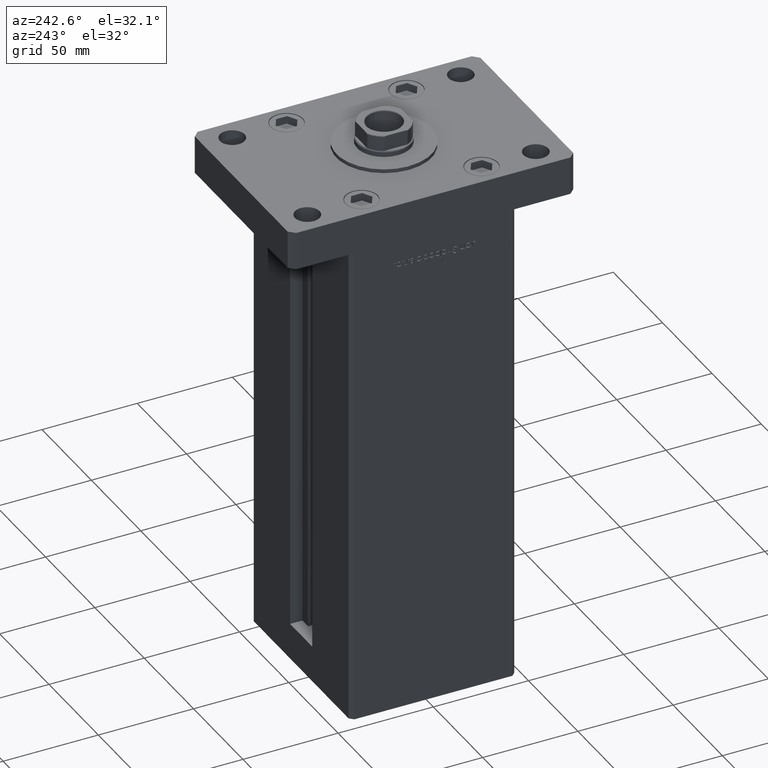
[diagram: clean part render]
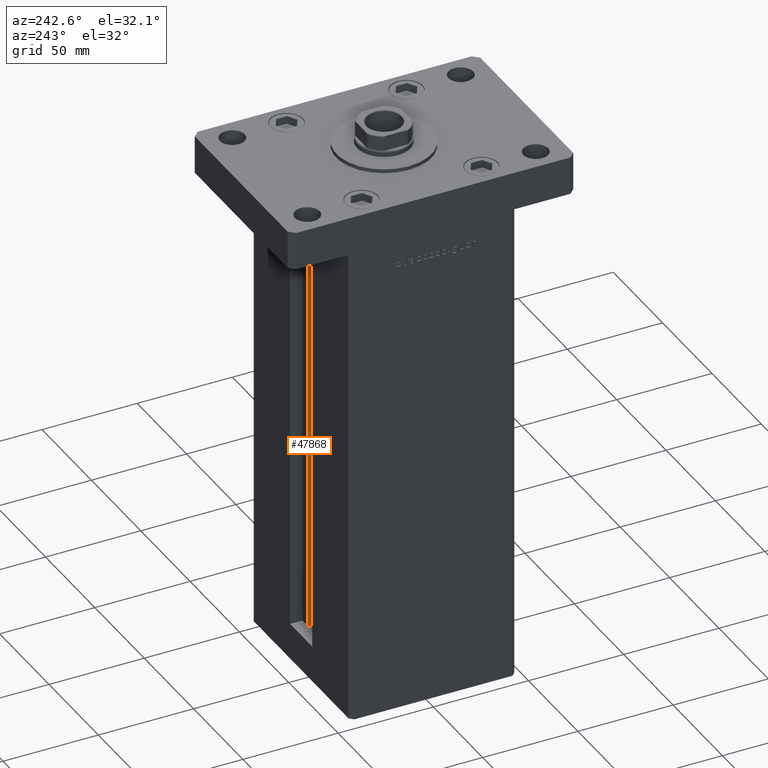
[diagram: same view with one face highlighted and labeled with its STEP entity id]
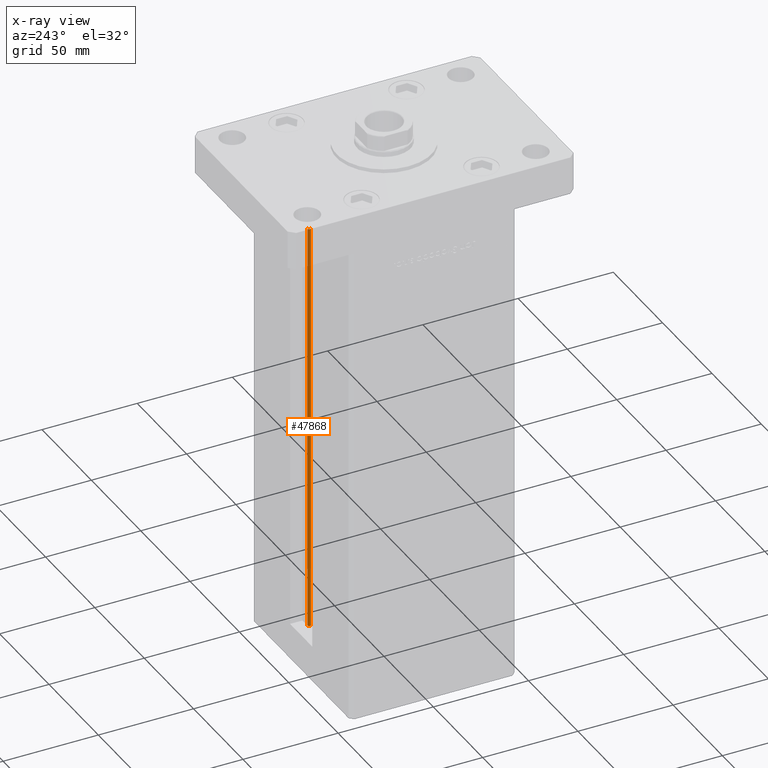
[diagram: x-ray of the same camera — body ghosted, the highlighted face saturated]
A machine part, auxiliary view. The second image highlights one B-rep face of the part: STEP entity #47868.
The next image is the same camera in x-ray: the body ghosted, the highlighted face saturated — about 9% of this face is hidden behind the body in this view.
In plain terms, the highlighted cylindrical surface (edge-blend (fillet) strip) has radius 0.9333 mm, axis along (0, 0, 1).
Its self-contained STEP definition (entity closure, byte-faithful):
#444 = ORIENTED_EDGE ( 'NONE', *, *, #22992, .F. ) ;
#715 = CARTESIAN_POINT ( 'NONE',  ( 5.375042956467945388, 35.59999999999898534, 0.000000000000000000 ) ) ;
#991 = CARTESIAN_POINT ( 'NONE',  ( 6.183333333333997928, 36.06666666666598786, 0.000000000000000000 ) ) ;
#1528 = DIRECTION ( 'NONE',  ( -0.000000000000000000, -0.000000000000000000, 1.000000000000000000 ) ) ;
#2063 = DIRECTION ( 'NONE',  ( 1.000000000000000000, 0.000000000000000000, 0.000000000000000000 ) ) ;
#4224 = EDGE_LOOP ( 'NONE', ( #20083, #444, #28723, #23186 ) ) ;
#9552 = DIRECTION ( 'NONE',  ( 1.000000000000000000, 0.000000000000000000, 0.000000000000000000 ) ) ;
#9957 = LINE ( 'NONE', #715, #51532 ) ;
#12043 = VERTEX_POINT ( 'NONE', #34860 ) ;
#12149 = CARTESIAN_POINT ( 'NONE',  ( 5.375042956467945388, 35.59999999999898534, 0.000000000000000000 ) ) ;
#13745 = AXIS2_PLACEMENT_3D ( 'NONE', #26737, #46921, #9552 ) ;
#14222 = DIRECTION ( 'NONE',  ( -0.000000000000000000, -0.000000000000000000, -1.000000000000000000 ) ) ;
#14332 = DIRECTION ( 'NONE',  ( -0.000000000000000000, -0.000000000000000000, 1.000000000000000000 ) ) ;
#17196 = VERTEX_POINT ( 'NONE', #30166 ) ;
#17416 = VECTOR ( 'NONE', #51444, 1000.000000000000000 ) ;
#18034 = DIRECTION ( 'NONE',  ( 1.000000000000000000, 0.000000000000000000, 0.000000000000000000 ) ) ;
#18243 = AXIS2_PLACEMENT_3D ( 'NONE', #991, #14332, #2063 ) ;
#20083 = ORIENTED_EDGE ( 'NONE', *, *, #22876, .F. ) ;
#21770 = AXIS2_PLACEMENT_3D ( 'NONE', #22120, #14222, #18034 ) ;
#22120 = CARTESIAN_POINT ( 'NONE',  ( 6.183333333333997928, 36.06666666666598786, 0.000000000000000000 ) ) ;
#22876 = EDGE_CURVE ( 'NONE', #27660, #12043, #43809, .T. ) ;
#22992 = EDGE_CURVE ( 'NONE', #36794, #27660, #40938, .T. ) ;
#23186 = ORIENTED_EDGE ( 'NONE', *, *, #37466, .T. ) ;
#25792 = CYLINDRICAL_SURFACE ( 'NONE', #18243, 0.9333333333340008142 ) ;
#26737 = CARTESIAN_POINT ( 'NONE',  ( 6.183333333333997928, 36.06666666666598786, 218.5000000000000000 ) ) ;
#27660 = VERTEX_POINT ( 'NONE', #45149 ) ;
#28723 = ORIENTED_EDGE ( 'NONE', *, *, #49034, .T. ) ;
#30166 = CARTESIAN_POINT ( 'NONE',  ( 5.375042956467944499, 35.59999999999899245, 218.5000000000000000 ) ) ;
#34860 = CARTESIAN_POINT ( 'NONE',  ( 6.183333333333997928, 36.99999999999999289, 218.5000000000000000 ) ) ;
#35351 = CARTESIAN_POINT ( 'NONE',  ( 6.183333333333997928, 36.99999999999999289, 0.000000000000000000 ) ) ;
#36794 = VERTEX_POINT ( 'NONE', #12149 ) ;
#37466 = EDGE_CURVE ( 'NONE', #17196, #12043, #47693, .T. ) ;
#38898 = FACE_OUTER_BOUND ( 'NONE', #4224, .T. ) ;
#40938 = CIRCLE ( 'NONE', #21770, 0.9333333333340008142 ) ;
#43809 = LINE ( 'NONE', #35351, #17416 ) ;
#45149 = CARTESIAN_POINT ( 'NONE',  ( 6.183333333333997928, 36.99999999999999289, 0.000000000000000000 ) ) ;
#46921 = DIRECTION ( 'NONE',  ( 0.000000000000000000, 0.000000000000000000, -1.000000000000000000 ) ) ;
#47693 = CIRCLE ( 'NONE', #13745, 0.9333333333340008142 ) ;
#47868 = ADVANCED_FACE ( 'NONE', ( #38898 ), #25792, .T. ) ;
#49034 = EDGE_CURVE ( 'NONE', #36794, #17196, #9957, .T. ) ;
#51444 = DIRECTION ( 'NONE',  ( -0.000000000000000000, -0.000000000000000000, 1.000000000000000000 ) ) ;
#51532 = VECTOR ( 'NONE', #1528, 1000.000000000000000 ) ;